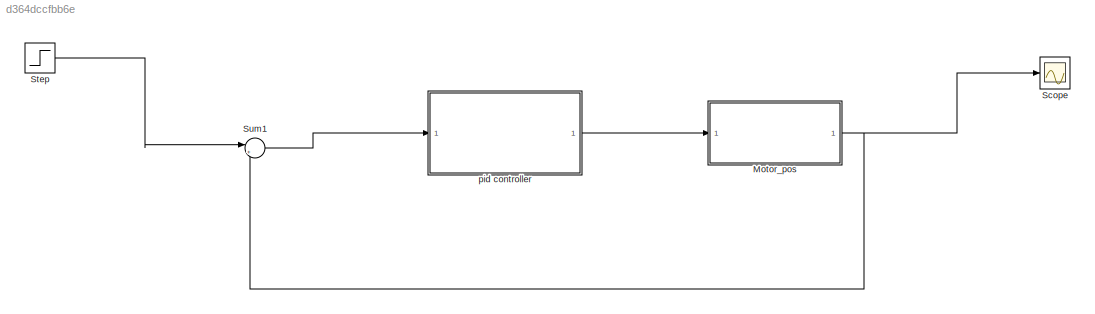
MODEL slx_d364dccfbb6e
KIND model
CONFIG AbsTol = auto
CONFIG EnableMultiTasking = off
CONFIG FixedStep = auto
CONFIG MaxStep = auto
CONFIG MinStep = auto
CONFIG RelTol = 1e-3
CONFIG SampleTimeConstraint = Unconstrained
CONFIG Solver = VariableStepAuto
CONFIG SolverName = VariableStepAuto
CONFIG StartTime = 0.0
CONFIG StopTime = 10.0
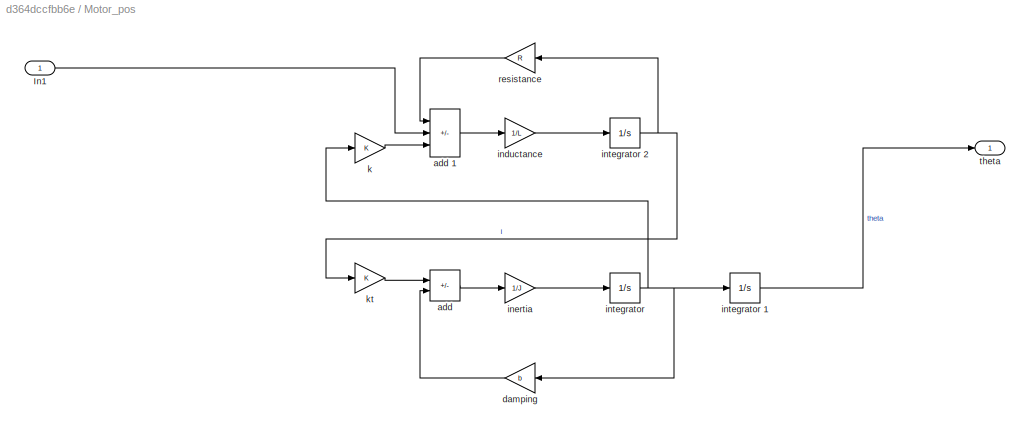
BLOCK [SubSystem] Motor_pos
  Ports = [1, 1]
  RequestExecContextInheritance = off
BLOCK [Inport] Motor_pos/In1
BLOCK [Sum] Motor_pos/add
  IconShape = rectangular
  Inputs = +-
  Ports = [2, 1]
BLOCK [Sum] Motor_pos/add 1
  IconShape = rectangular
  Inputs = -+-
  Ports = [3, 1]
BLOCK [Gain] Motor_pos/damping
  Gain = b
BLOCK [Gain] Motor_pos/inductance
  Gain = 1/L
BLOCK [Gain] Motor_pos/inertia
  Gain = 1/J
BLOCK [Integrator] Motor_pos/integrator
  Ports = [1, 1]
BLOCK [Integrator] Motor_pos/integrator 1
  Ports = [1, 1]
BLOCK [Integrator] Motor_pos/integrator 2
  Ports = [1, 1]
BLOCK [Gain] Motor_pos/k
  Gain = K
BLOCK [Gain] Motor_pos/kt
  Gain = K
BLOCK [Gain] Motor_pos/resistance
  Gain = R
  NameLocation = top
BLOCK [Outport] Motor_pos/theta
BLOCK [Scope] Scope
  Floating = off
  NumInputPorts = 1
  Ports = [1]
  ScopeSpecificationString = Simulink.scopes.TimeScopeBlockCfg('CurrentConfiguration', extmgr.ConfigurationSet(extmgr.Configuration('Core','General UI',true),extmgr.Configuration('Core','Source UI',true),extmgr.Configuration('Sources','WiredSimulink',true),extmgr.Configuration('Visuals','Time Domain',true,'SerializedDisplays',{struct('MinYLimReal','-0.14993','MaxYLimReal','1.34934','YLabelReal','','MinYLimMag','0.00000','MaxY...<+1384ch>
BLOCK [Step] Step
  SampleTime = 0
BLOCK [Sum] Sum1
  Inputs = |+-
  Ports = [2, 1]
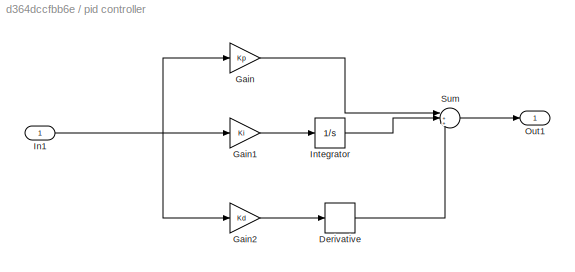
BLOCK [SubSystem] pid controller
  Ports = [1, 1]
  RequestExecContextInheritance = off
BLOCK [Derivative] pid controller/Derivative
BLOCK [Gain] pid controller/Gain
  Gain = Kp
BLOCK [Gain] pid controller/Gain1
  Gain = Ki
BLOCK [Gain] pid controller/Gain2
  Gain = Kd
BLOCK [Inport] pid controller/In1
BLOCK [Integrator] pid controller/Integrator
  Ports = [1, 1]
BLOCK [Outport] pid controller/Out1
BLOCK [Sum] pid controller/Sum
  Inputs = |+++
  Ports = [3, 1]
LINE Motor_pos/In1:1 -> Motor_pos/add 1:2
LINE Motor_pos/add 1:1 -> Motor_pos/inductance:1
LINE Motor_pos/add:1 -> Motor_pos/inertia:1
LINE Motor_pos/damping:1 -> Motor_pos/add:2
LINE Motor_pos/inductance:1 -> Motor_pos/integrator 2:1
LINE Motor_pos/inertia:1 -> Motor_pos/integrator:1
LINE Motor_pos/integrator 1:1 -> Motor_pos/theta:1
NET Motor_pos/integrator 2:1 -> Motor_pos/kt:1, Motor_pos/resistance:1
NET Motor_pos/integrator:1 -> Motor_pos/damping:1, Motor_pos/integrator 1:1, Motor_pos/k:1
LINE Motor_pos/k:1 -> Motor_pos/add 1:3
LINE Motor_pos/kt:1 -> Motor_pos/add:1
LINE Motor_pos/resistance:1 -> Motor_pos/add 1:1
NET Motor_pos:1 -> Scope:1, Sum1:2
LINE Step:1 -> Sum1:1
LINE Sum1:1 -> pid controller:1
LINE pid controller/Derivative:1 -> pid controller/Sum:3
LINE pid controller/Gain1:1 -> pid controller/Integrator:1
LINE pid controller/Gain2:1 -> pid controller/Derivative:1
LINE pid controller/Gain:1 -> pid controller/Sum:1
NET pid controller/In1:1 -> pid controller/Gain1:1, pid controller/Gain2:1, pid controller/Gain:1
LINE pid controller/Integrator:1 -> pid controller/Sum:2
LINE pid controller/Sum:1 -> pid controller/Out1:1
LINE pid controller:1 -> Motor_pos:1
note: NET lines group one-source signal fan-out (src -> all destinations, sorted); 1:1 wires keep LINE
